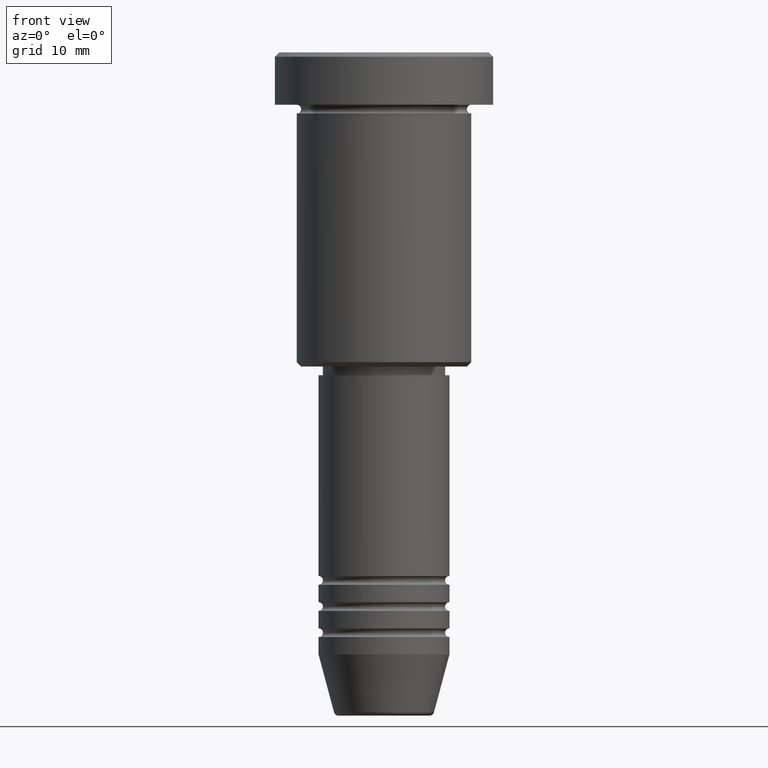
[diagram: clean part render]
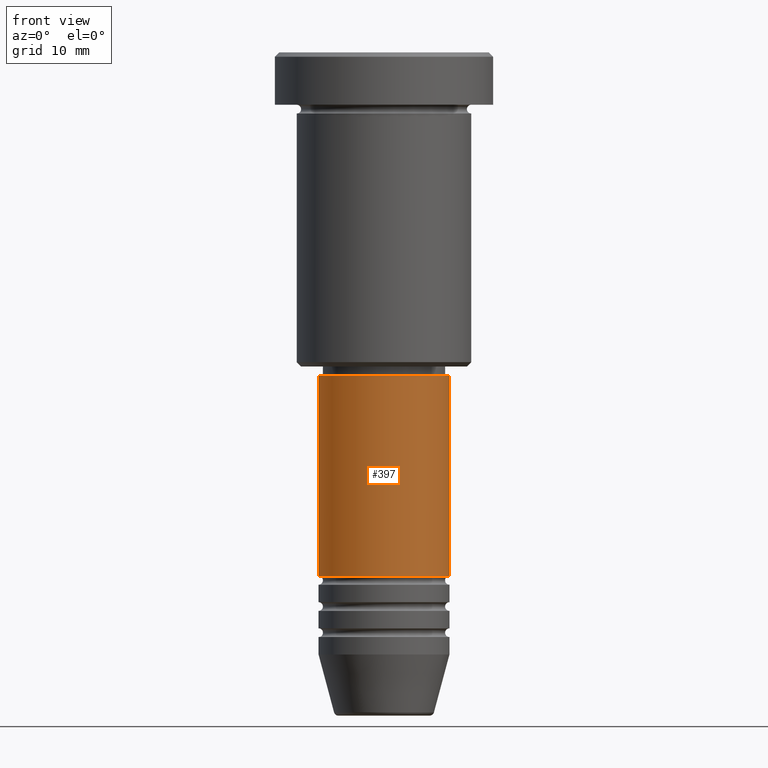
[diagram: same view with one face highlighted and labeled with its STEP entity id]
A machine part, front view. The second image highlights one B-rep face of the part: STEP entity #397.
In plain terms, the highlighted cylindrical surface (partial cylindrical patch) has radius 7.5 mm, axis along (-0, -0, 1).
Its self-contained STEP definition (entity closure, byte-faithful):
#6 = EDGE_CURVE ( 'NONE', #1063, #202, #86, .T. ) ;
#9 = DIRECTION ( 'NONE',  ( -0.000000000000000000, -0.000000000000000000, 1.000000000000000000 ) ) ;
#27 = CARTESIAN_POINT ( 'NONE',  ( 7.500000000000000000, 0.000000000000000000, -59.99999999999998579 ) ) ;
#48 = DIRECTION ( 'NONE',  ( 1.000000000000000000, 0.000000000000000000, 0.000000000000000000 ) ) ;
#64 = AXIS2_PLACEMENT_3D ( 'NONE', #564, #826, #359 ) ;
#73 = CARTESIAN_POINT ( 'NONE',  ( 7.500000000000000000, 0.000000000000000000, -37.00000000000000711 ) ) ;
#86 = CIRCLE ( 'NONE', #64, 7.500000000000000000 ) ;
#122 = VECTOR ( 'NONE', #344, 1000.000000000000000 ) ;
#137 = CARTESIAN_POINT ( 'NONE',  ( -7.500000000000000000, 9.184850993605147944E-16, -59.99999999999998579 ) ) ;
#170 = CARTESIAN_POINT ( 'NONE',  ( 0.000000000000000000, 0.000000000000000000, 0.000000000000000000 ) ) ;
#202 = VERTEX_POINT ( 'NONE', #73 ) ;
#221 = EDGE_CURVE ( 'NONE', #574, #1063, #883, .T. ) ;
#251 = EDGE_CURVE ( 'NONE', #776, #202, #509, .T. ) ;
#260 = CARTESIAN_POINT ( 'NONE',  ( -7.500000000000000000, 9.184850993605147944E-16, 0.000000000000000000 ) ) ;
#262 = FACE_OUTER_BOUND ( 'NONE', #870, .T. ) ;
#286 = ORIENTED_EDGE ( 'NONE', *, *, #221, .F. ) ;
#344 = DIRECTION ( 'NONE',  ( -0.000000000000000000, -0.000000000000000000, 1.000000000000000000 ) ) ;
#359 = DIRECTION ( 'NONE',  ( 1.000000000000000000, 0.000000000000000000, 0.000000000000000000 ) ) ;
#397 = ADVANCED_FACE ( 'NONE', ( #262 ), #626, .T. ) ;
#456 = CARTESIAN_POINT ( 'NONE',  ( -7.500000000000000000, 9.184850993605147944E-16, -37.00000000000000711 ) ) ;
#485 = AXIS2_PLACEMENT_3D ( 'NONE', #170, #9, #1085 ) ;
#501 = VECTOR ( 'NONE', #532, 1000.000000000000000 ) ;
#509 = LINE ( 'NONE', #704, #501 ) ;
#532 = DIRECTION ( 'NONE',  ( -0.000000000000000000, -0.000000000000000000, 1.000000000000000000 ) ) ;
#550 = AXIS2_PLACEMENT_3D ( 'NONE', #866, #576, #48 ) ;
#556 = ORIENTED_EDGE ( 'NONE', *, *, #251, .T. ) ;
#564 = CARTESIAN_POINT ( 'NONE',  ( 0.000000000000000000, 0.000000000000000000, -37.00000000000000711 ) ) ;
#574 = VERTEX_POINT ( 'NONE', #137 ) ;
#576 = DIRECTION ( 'NONE',  ( -0.000000000000000000, -0.000000000000000000, 1.000000000000000000 ) ) ;
#626 = CYLINDRICAL_SURFACE ( 'NONE', #485, 7.500000000000000000 ) ;
#663 = EDGE_CURVE ( 'NONE', #574, #776, #705, .T. ) ;
#704 = CARTESIAN_POINT ( 'NONE',  ( 7.500000000000000000, 0.000000000000000000, 0.000000000000000000 ) ) ;
#705 = CIRCLE ( 'NONE', #550, 7.500000000000000000 ) ;
#776 = VERTEX_POINT ( 'NONE', #27 ) ;
#826 = DIRECTION ( 'NONE',  ( -0.000000000000000000, -0.000000000000000000, 1.000000000000000000 ) ) ;
#853 = ORIENTED_EDGE ( 'NONE', *, *, #6, .F. ) ;
#866 = CARTESIAN_POINT ( 'NONE',  ( 0.000000000000000000, 0.000000000000000000, -59.99999999999998579 ) ) ;
#870 = EDGE_LOOP ( 'NONE', ( #286, #1102, #556, #853 ) ) ;
#883 = LINE ( 'NONE', #260, #122 ) ;
#1063 = VERTEX_POINT ( 'NONE', #456 ) ;
#1085 = DIRECTION ( 'NONE',  ( 1.000000000000000000, 0.000000000000000000, 0.000000000000000000 ) ) ;
#1102 = ORIENTED_EDGE ( 'NONE', *, *, #663, .T. ) ;